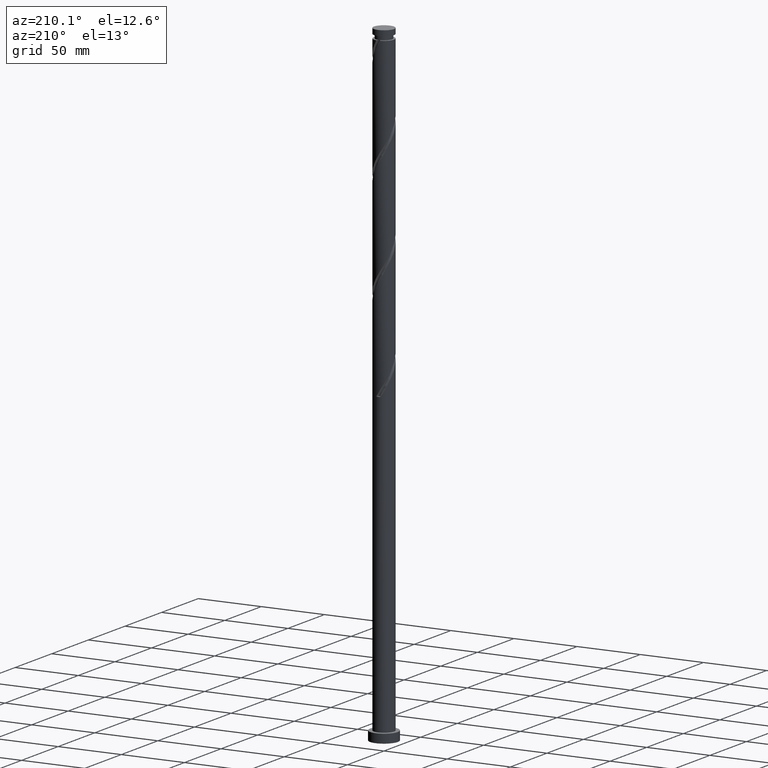
[diagram: clean part render]
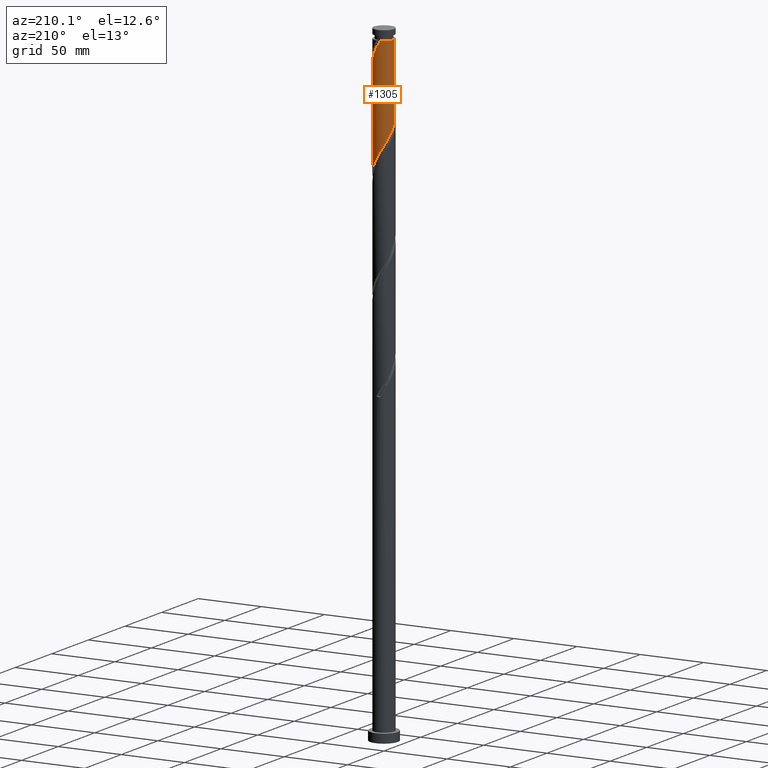
[diagram: same view with one face highlighted and labeled with its STEP entity id]
A machine part, auxiliary view. The second image highlights one B-rep face of the part: STEP entity #1305.
In plain terms, the highlighted cylindrical surface (edge-blend (fillet) strip) has radius 8 mm, axis along (-0, -0, -1).
Its self-contained STEP definition (entity closure, byte-faithful):
#35 = CARTESIAN_POINT ( 'NONE',  ( 6.633991202741126081, 4.471035754940183793, 476.9760908806701423 ) ) ;
#37 = CARTESIAN_POINT ( 'NONE',  ( 0.03188232739405321564, 7.999936469572738851, 411.8719242140033998 ) ) ;
#47 = CARTESIAN_POINT ( 'NONE',  ( -5.634265116796108863, 5.679353536596797980, 422.2885908806701423 ) ) ;
#65 = CARTESIAN_POINT ( 'NONE',  ( -1.591979899370596030, 7.839999999999999858, 492.6010908806701423 ) ) ;
#78 = CARTESIAN_POINT ( 'NONE',  ( 3.090898576606947223, 7.378776727149911174, 406.6635908806701423 ) ) ;
#97 = EDGE_CURVE ( 'NONE', #182, #1148, #1806, .T. ) ;
#110 = CARTESIAN_POINT ( 'NONE',  ( 7.999999999999998224, 7.231660175669996548E-15, 391.0912878586668739 ) ) ;
#143 = EDGE_CURVE ( 'NONE', #170, #906, #194, .T. ) ;
#170 = VERTEX_POINT ( 'NONE', #461 ) ;
#182 = VERTEX_POINT ( 'NONE', #1888 ) ;
#191 = CARTESIAN_POINT ( 'NONE',  ( 2.302838286826541125, 7.701803129331653786, 486.0906742140034567 ) ) ;
#194 = CIRCLE ( 'NONE', #437, 7.999999999999952927 ) ;
#198 = LINE ( 'NONE', #1293, #1644 ) ;
#204 = CARTESIAN_POINT ( 'NONE',  ( 6.193632616777009936, 5.124426858357238324, 478.2781742140033998 ) ) ;
#214 = CARTESIAN_POINT ( 'NONE',  ( 7.074349788705244002, 3.817644651523123489, 475.6740075473368279 ) ) ;
#235 = CARTESIAN_POINT ( 'NONE',  ( 3.761137147474604259, 7.104553678883962498, 483.4865075473369416 ) ) ;
#328 = CARTESIAN_POINT ( 'NONE',  ( -8.000000000000000000, 0.000000000000000000, 500.0000000000000000 ) ) ;
#369 = CARTESIAN_POINT ( 'NONE',  ( 7.852439867035857723, 1.529440464544432388, 393.6427575473368279 ) ) ;
#390 = CARTESIAN_POINT ( 'NONE',  ( -7.999999999999998224, 4.708034433954229280E-15, 432.7579545253335596 ) ) ;
#411 = CARTESIAN_POINT ( 'NONE',  ( -7.683203665594589005, 2.364152501690766517, 428.7990075473368279 ) ) ;
#437 = AXIS2_PLACEMENT_3D ( 'NONE', #776, #1763, #1736 ) ;
#446 = FACE_OUTER_BOUND ( 'NONE', #556, .T. ) ;
#461 = CARTESIAN_POINT ( 'NONE',  ( -7.999999999999952927, 0.000000000000000000, 492.6010908806701423 ) ) ;
#550 = CARTESIAN_POINT ( 'NONE',  ( 6.234280214836365630, 5.074897616815213119, 400.1531742140035135 ) ) ;
#556 = EDGE_LOOP ( 'NONE', ( #720, #654, #1042, #1065, #1539 ) ) ;
#558 = CARTESIAN_POINT ( 'NONE',  ( 7.378776727149924497, 3.090898576606948112, 474.3719242140035135 ) ) ;
#560 = CARTESIAN_POINT ( 'NONE',  ( -7.840000000000000746, 1.591979899370598250, 430.1010908806699717 ) ) ;
#571 = CARTESIAN_POINT ( 'NONE',  ( -5.074897616815214008, 6.234280214836361189, 420.9865075473367710 ) ) ;
#654 = ORIENTED_EDGE ( 'NONE', *, *, #1584, .T. ) ;
#680 = EDGE_CURVE ( 'NONE', #1666, #906, #712, .T. ) ;
#686 = CARTESIAN_POINT ( 'NONE',  ( 7.403178404107801924, 3.031987717150562034, 396.2469242140034567 ) ) ;
#702 = CARTESIAN_POINT ( 'NONE',  ( 4.418017382144913796, 6.669416946860166284, 482.1844242140034567 ) ) ;
#712 =( BOUNDED_CURVE ( )  B_SPLINE_CURVE ( 2, ( #723, #869, #1519, #1377, #1365, #878, #558, #214, #35, #204, #1183, #1204, #702, #235, #1984, #191, #1818, #1497, #1531, #1355, #65 ),
 .UNSPECIFIED., .F., .T. ) 
 B_SPLINE_CURVE_WITH_KNOTS ( ( 3, 2, 2, 2, 2, 2, 2, 2, 2, 2, 3 ),
 ( 0.6795286902180874833, 0.6796875000000000000, 0.6875000000000000000, 0.6953125000000000000, 0.7031250000000000000, 0.7109375000000000000, 0.7187500000000000000, 0.7265625000000000000, 0.7343750000000000000, 0.7421875000000000000, 0.7500000000000000000 ),
 .UNSPECIFIED. ) 
 CURVE ( )  GEOMETRIC_REPRESENTATION_ITEM ( )  RATIONAL_B_SPLINE_CURVE ( ( 0.9089165573359425654, 0.9090019243628472134, 0.9090909090909388146, 0.9047133878838449217, 0.9090909090909388146, 0.9047133878838449217, 0.9090909090909388146, 0.9047133878838449217, 0.9090909090909388146, 0.9047133878838449217, 0.9090909090909388146, 0.9047133878838449217, 0.9090909090909388146, 0.9047133878838449217, 0.9090909090909388146, 0.9047133878838449217, 0.9090909090909388146, 0.9047133878838449217, 0.9090909090909388146, 0.9047133878838449217, 0.9090909090909388146 ) ) 
 REPRESENTATION_ITEM ( '' )  );
#715 = CARTESIAN_POINT ( 'NONE',  ( -3.031987717150564698, 7.403178404107800148, 417.0802575473367710 ) ) ;
#720 = ORIENTED_EDGE ( 'NONE', *, *, #680, .F. ) ;
#723 = CARTESIAN_POINT ( 'NONE',  ( 8.000000000000010658, -7.828085757168507768E-17, 469.1108939026734106 ) ) ;
#776 = CARTESIAN_POINT ( 'NONE',  ( 0.000000000000000000, 0.000000000000000000, 492.6010908806701423 ) ) ;
#817 = DIRECTION ( 'NONE',  ( -0.000000000000000000, -0.000000000000000000, -1.000000000000000000 ) ) ;
#861 = CARTESIAN_POINT ( 'NONE',  ( -6.633991202741117199, 4.471035754940177576, 424.8927575473368279 ) ) ;
#869 = CARTESIAN_POINT ( 'NONE',  ( 8.000000000000010658, 0.01594122699411236813, 469.1372474571906537 ) ) ;
#871 = CARTESIAN_POINT ( 'NONE',  ( -2.302838286826536240, 7.701803129331646680, 415.7781742140035135 ) ) ;
#878 = CARTESIAN_POINT ( 'NONE',  ( 7.683203665594604104, 2.364152501690763852, 473.0698408806700286 ) ) ;
#906 = VERTEX_POINT ( 'NONE', #2034 ) ;
#975 = DIRECTION ( 'NONE',  ( -0.000000000000000000, -0.000000000000000000, -1.000000000000000000 ) ) ;
#1027 = AXIS2_PLACEMENT_3D ( 'NONE', #2058, #1892, #2099 ) ;
#1028 = CARTESIAN_POINT ( 'NONE',  ( 5.124426858357232106, 6.193632616776996613, 402.7573408806700286 ) ) ;
#1037 = CARTESIAN_POINT ( 'NONE',  ( 6.669416946860161843, 4.418017382144903138, 398.8510908806700854 ) ) ;
#1042 = ORIENTED_EDGE ( 'NONE', *, *, #97, .F. ) ;
#1048 = CARTESIAN_POINT ( 'NONE',  ( -8.000000000000000000, 0.01594122699410601904, 432.7316009708162596 ) ) ;
#1059 = CARTESIAN_POINT ( 'NONE',  ( -7.378776727149912062, 3.090898576606945003, 427.4969242140034567 ) ) ;
#1065 = ORIENTED_EDGE ( 'NONE', *, *, #1435, .F. ) ;
#1138 = CARTESIAN_POINT ( 'NONE',  ( 7.999999999999998224, 7.231660175669996548E-15, 391.0912878586668739 ) ) ;
#1148 = VERTEX_POINT ( 'NONE', #1138 ) ;
#1183 = CARTESIAN_POINT ( 'NONE',  ( 5.634265116796118633, 5.679353536596803309, 479.5802575473368847 ) ) ;
#1185 = CARTESIAN_POINT ( 'NONE',  ( 0.8198072970504303170, 7.996796334405404494, 410.5698408806701423 ) ) ;
#1188 = CARTESIAN_POINT ( 'NONE',  ( 8.000000000000010658, -7.828085757168507768E-17, 469.1108939026734106 ) ) ;
#1204 = CARTESIAN_POINT ( 'NONE',  ( 5.074897616815221113, 6.234280214836371847, 480.8823408806700854 ) ) ;
#1206 = CARTESIAN_POINT ( 'NONE',  ( -6.193632616776999278, 5.124426858357232106, 423.5906742140034567 ) ) ;
#1219 = CARTESIAN_POINT ( 'NONE',  ( 3.817644651523122601, 7.074349788705234232, 405.3615075473367142 ) ) ;
#1293 = CARTESIAN_POINT ( 'NONE',  ( 8.000000000000000000, 9.797174393178825657E-16, 500.0000000000000000 ) ) ;
#1305 = ADVANCED_FACE ( 'NONE', ( #446 ), #1413, .T. ) ;
#1347 = CARTESIAN_POINT ( 'NONE',  ( -0.7560426422623236498, 8.003076604740073208, 413.1740075473368279 ) ) ;
#1355 = CARTESIAN_POINT ( 'NONE',  ( -0.8198072970504313162, 7.996796334405415152, 491.2990075473367710 ) ) ;
#1357 = CARTESIAN_POINT ( 'NONE',  ( -4.418017382144905802, 6.669416946860161843, 419.6844242140035703 ) ) ;
#1365 = CARTESIAN_POINT ( 'NONE',  ( 7.840000000000009628, 1.591979899370597806, 471.7677575473369416 ) ) ;
#1368 = CARTESIAN_POINT ( 'NONE',  ( 2.364152501690765629, 7.683203665594592557, 407.9656742140036840 ) ) ;
#1377 = CARTESIAN_POINT ( 'NONE',  ( 7.996796334405415152, 0.8198072970504317603, 470.4656742140035135 ) ) ;
#1413 = CYLINDRICAL_SURFACE ( 'NONE', #1027, 8.000000000000000000 ) ;
#1435 = EDGE_CURVE ( 'NONE', #170, #182, #1514, .T. ) ;
#1497 = CARTESIAN_POINT ( 'NONE',  ( 0.7560426422623270915, 8.003076604740083866, 488.6948408806701423 ) ) ;
#1500 = CARTESIAN_POINT ( 'NONE',  ( -1.529440464544429945, 7.852439867035857723, 414.4760908806701423 ) ) ;
#1514 = LINE ( 'NONE', #328, #1610 ) ;
#1519 = CARTESIAN_POINT ( 'NONE',  ( 7.999936469572752173, 0.03188232739404883720, 469.1635908806701991 ) ) ;
#1522 = CARTESIAN_POINT ( 'NONE',  ( -7.999936469572738851, 0.03188232739405364585, 432.7052575473367142 ) ) ;
#1531 = CARTESIAN_POINT ( 'NONE',  ( -0.03188232739404842087, 7.999936469572752173, 489.9969242140035703 ) ) ;
#1539 = ORIENTED_EDGE ( 'NONE', *, *, #143, .T. ) ;
#1544 = CARTESIAN_POINT ( 'NONE',  ( -7.074349788705235120, 3.817644651523122157, 426.1948408806701423 ) ) ;
#1584 = EDGE_CURVE ( 'NONE', #1666, #1148, #198, .T. ) ;
#1610 = VECTOR ( 'NONE', #975, 1000.000000000000000 ) ;
#1644 = VECTOR ( 'NONE', #817, 1000.000000000000000 ) ;
#1666 = VERTEX_POINT ( 'NONE', #1188 ) ;
#1691 = CARTESIAN_POINT ( 'NONE',  ( 8.000000000000001776, 0.7718385194318428955, 392.3672679640829415 ) ) ;
#1703 = CARTESIAN_POINT ( 'NONE',  ( -7.996796334405404494, 0.8198072970504300949, 431.4031742140033430 ) ) ;
#1736 = DIRECTION ( 'NONE',  ( -1.000000000000000000, 0.000000000000000000, 0.000000000000000000 ) ) ;
#1763 = DIRECTION ( 'NONE',  ( -0.000000000000000000, -0.000000000000000000, -1.000000000000000000 ) ) ;
#1806 =( BOUNDED_CURVE ( )  B_SPLINE_CURVE ( 2, ( #390, #1048, #1522, #1703, #560, #411, #1059, #1544, #861, #1206, #47, #571, #1357, #2025, #715, #871, #1500, #1347, #37, #1185, #1838, #1368, #78, #1219, #1829, #1028, #1868, #550, #1037, #1858, #686, #1986, #369, #1691, #110 ),
 .UNSPECIFIED., .F., .T. ) 
 B_SPLINE_CURVE_WITH_KNOTS ( ( 3, 2, 2, 2, 2, 2, 2, 2, 2, 2, 2, 2, 2, 2, 2, 2, 2, 3 ),
 ( 0.4295286902180873723, 0.4296875000000000000, 0.4375000000000000000, 0.4453125000000000000, 0.4531250000000000000, 0.4609375000000000000, 0.4687500000000000000, 0.4765625000000000000, 0.4843750000000000000, 0.4921875000000000000, 0.5000000000000000000, 0.5078125000000000000, 0.5156250000000000000, 0.5234375000000000000, 0.5312500000000000000, 0.5390625000000000000, 0.5468750000000000000, 0.5545286902180872612 ),
 .UNSPECIFIED. ) 
 CURVE ( )  GEOMETRIC_REPRESENTATION_ITEM ( )  RATIONAL_B_SPLINE_CURVE ( ( 0.9089165573359370143, 0.9090019243628417733, 0.9090909090909334855, 0.9047133878838395926, 0.9090909090909334855, 0.9047133878838395926, 0.9090909090909334855, 0.9047133878838395926, 0.9090909090909334855, 0.9047133878838395926, 0.9090909090909334855, 0.9047133878838395926, 0.9090909090909334855, 0.9047133878838395926, 0.9090909090909334855, 0.9047133878838395926, 0.9090909090909334855, 0.9047133878838395926, 0.9090909090909334855, 0.9047133878838395926, 0.9090909090909334855, 0.9047133878838395926, 0.9090909090909334855, 0.9047133878838395926, 0.9090909090909334855, 0.9047133878838395926, 0.9090909090909334855, 0.9047133878838395926, 0.9090909090909334855, 0.9047133878838395926, 0.9090909090909334855, 0.9047133878838395926, 0.9090909090909334855, 0.9048023726119314158, 0.9089165573359369033 ) ) 
 REPRESENTATION_ITEM ( '' )  );
#1818 = CARTESIAN_POINT ( 'NONE',  ( 1.529440464544438383, 7.852439867035869270, 487.3927575473369416 ) ) ;
#1829 = CARTESIAN_POINT ( 'NONE',  ( 4.471035754940181128, 6.633991202741113646, 404.0594242140034567 ) ) ;
#1838 = CARTESIAN_POINT ( 'NONE',  ( 1.591979899370599805, 7.840000000000000746, 409.2677575473368279 ) ) ;
#1858 = CARTESIAN_POINT ( 'NONE',  ( 7.104553678883956280, 3.761137147474594933, 397.5490075473368279 ) ) ;
#1868 = CARTESIAN_POINT ( 'NONE',  ( 5.679353536596797092, 5.634265116796108863, 401.4552575473367142 ) ) ;
#1888 = CARTESIAN_POINT ( 'NONE',  ( -7.999999999999998224, 4.708034433954230069E-15, 432.7579545253335596 ) ) ;
#1892 = DIRECTION ( 'NONE',  ( -0.000000000000000000, -0.000000000000000000, -1.000000000000000000 ) ) ;
#1984 = CARTESIAN_POINT ( 'NONE',  ( 3.031987717150570028, 7.403178404107809030, 484.7885908806701991 ) ) ;
#1986 = CARTESIAN_POINT ( 'NONE',  ( 7.701803129331644904, 2.302838286826535352, 394.9448408806701991 ) ) ;
#2025 = CARTESIAN_POINT ( 'NONE',  ( -3.761137147474594489, 7.104553678883956280, 418.3823408806700854 ) ) ;
#2034 = CARTESIAN_POINT ( 'NONE',  ( -1.591979899370596252, 7.839999999999999858, 492.6010908806701423 ) ) ;
#2058 = CARTESIAN_POINT ( 'NONE',  ( 0.000000000000000000, 0.000000000000000000, 500.0000000000000000 ) ) ;
#2099 = DIRECTION ( 'NONE',  ( -1.000000000000000000, 0.000000000000000000, 0.000000000000000000 ) ) ;